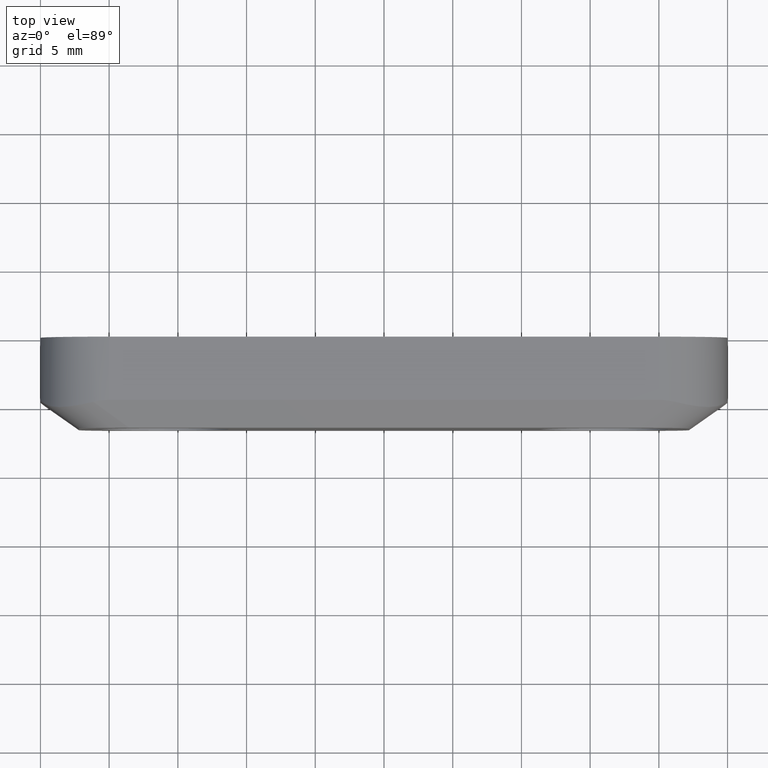
[diagram: clean part render]
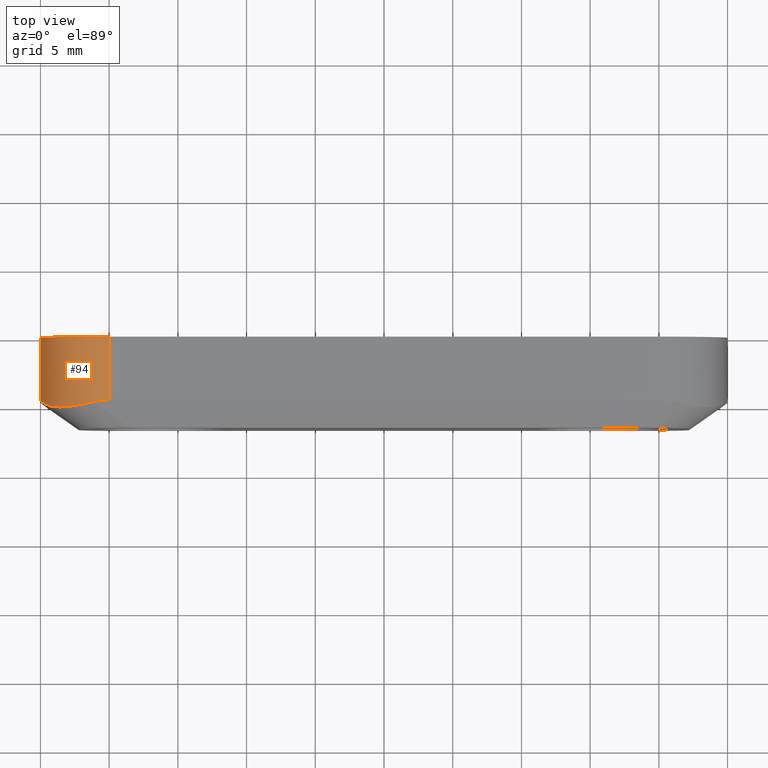
[diagram: same view with one face highlighted and labeled with its STEP entity id]
A machine part, top view. The second image highlights one B-rep face of the part: STEP entity #94.
In plain terms, the highlighted cylindrical surface (partial cylindrical patch) has radius 5 mm, axis along (-0, -1, -0).
Its self-contained STEP definition (entity closure, byte-faithful):
#94=ADVANCED_FACE('',(#300),#299,.T.);
#299=CYLINDRICAL_SURFACE('',#493,5.00000000000E+00);
#300=FACE_OUTER_BOUND('',#494,.T.);
#490=CARTESIAN_POINT('',(-2.00000000000E+01,-1.00000000000E+03,3.50000000000E+00));
#491=DIRECTION('',(-0.00000000000E+00,-1.00000000000E+00,-0.00000000000E+00));
#492=DIRECTION('',(-0.00000000000E+00,-0.00000000000E+00,-1.00000000000E+00));
#493=AXIS2_PLACEMENT_3D('',#490,#491,#492);
#494=EDGE_LOOP('',(#641,#642,#643,#644,#645,#646));
#641=ORIENTED_EDGE('',*,*,#734,.F.);
#642=ORIENTED_EDGE('',*,*,#715,.F.);
#643=ORIENTED_EDGE('',*,*,#718,.F.);
#644=ORIENTED_EDGE('',*,*,#742,.F.);
#645=ORIENTED_EDGE('',*,*,#736,.F.);
#646=ORIENTED_EDGE('',*,*,#696,.T.);
#696=EDGE_CURVE('',#870,#863,#871,.T.);
#715=EDGE_CURVE('',#992,#985,#999,.T.);
#718=EDGE_CURVE('',#1011,#992,#1018,.T.);
#734=EDGE_CURVE('',#985,#863,#1124,.T.);
#736=EDGE_CURVE('',#870,#1136,#1137,.T.);
#742=EDGE_CURVE('',#1136,#1011,#1177,.T.);
#863=VERTEX_POINT('',#1319);
#870=VERTEX_POINT('',#1323);
#871=(BOUNDED_CURVE() B_SPLINE_CURVE(3,(#1324,#1325,#1326,#1327,#1328,#1329,#1330,#1331,#1332,#1333,#1334,#1335,#1336,#1337),.UNSPECIFIED.,.F.,.F.) B_SPLINE_CURVE_WITH_KNOTS((4,2,2,2,2,2,4),(-4.90824634322E-03,-3.68118475742E-03,-3.06765396452E-03,-2.45412317161E-03,-1.84059237871E-03,-1.22706158581E-03,-0.00000000000E+00),.UNSPECIFIED.) CURVE() GEOMETRIC_REPRESENTATION_ITEM() RATIONAL_B_SPLINE_CURVE((1.00000000000E+00,1.00000000000E+00,1.00000000000E+00,1.00000000000E+00,1.00000000000E+00,1.00000000000E+00,1.00000000000E+00,1.00000000000E+00,1.00000000000E+00,1.00000000000E+00,1.00000000000E+00,1.00000000000E+00,1.00000000000E+00,1.00000000000E+00)) REPRESENTATION_ITEM('') );
#985=VERTEX_POINT('',#1414);
#992=VERTEX_POINT('',#1418);
#999=LINE('',#1422,#1423);
#1011=VERTEX_POINT('',#1428);
#1018=CIRCLE('',#1435,5.00000000000E+00);
#1124=(BOUNDED_CURVE() B_SPLINE_CURVE(2,(#1499,#1500,#1501),.UNSPECIFIED.,.F.,.F.) B_SPLINE_CURVE_WITH_KNOTS((3,3),(-6.28318530718E+00,-6.04960202528E+00),.UNSPECIFIED.) CURVE() GEOMETRIC_REPRESENTATION_ITEM() RATIONAL_B_SPLINE_CURVE((1.00000000000E+00,9.93187605171E-01,1.00000000000E+00)) REPRESENTATION_ITEM('') );
#1136=VERTEX_POINT('',#1505);
#1137=(BOUNDED_CURVE() B_SPLINE_CURVE(2,(#1506,#1507,#1508),.UNSPECIFIED.,.F.,.F.) B_SPLINE_CURVE_WITH_KNOTS((3,3),(-3.61227308264E-01,-5.61234065721E-17),.UNSPECIFIED.) CURVE() GEOMETRIC_REPRESENTATION_ITEM() RATIONAL_B_SPLINE_CURVE((1.00000000000E+00,9.83733645314E-01,1.00000000000E+00)) REPRESENTATION_ITEM('') );
#1177=LINE('',#1532,#1533);
#1319=CARTESIAN_POINT('',(-2.11573248682E+01,-4.73578380934E+00,8.36421619066E+00));
#1323=CARTESIAN_POINT('',(-2.46773188492E+01,-4.83048653627E+00,5.26711300790E+00));
#1324=CARTESIAN_POINT('',(-2.46773188492E+01,-4.83048653627E+00,5.26711300790E+00));
#1325=CARTESIAN_POINT('',(-2.45351442278E+01,-4.93203983728E+00,5.64343078364E+00));
#1326=CARTESIAN_POINT('',(-2.43467551378E+01,-5.00360393431E+00,6.00432384448E+00));
#1327=CARTESIAN_POINT('',(-2.39997594650E+01,-5.06739078605E+00,6.50722525909E+00));
#1328=CARTESIAN_POINT('',(-2.38720524415E+01,-5.08153356373E+00,6.67014865487E+00));
#1329=CARTESIAN_POINT('',(-2.35974899388E+01,-5.09522816680E+00,6.97860586221E+00));
#1330=CARTESIAN_POINT('',(-2.34520539393E+01,-5.09482975938E+00,7.12283673382E+00));
#1331=CARTESIAN_POINT('',(-2.31454236184E+01,-5.08093658207E+00,7.39203451432E+00));
#1332=CARTESIAN_POINT('',(-2.29842279747E+01,-5.06743344982E+00,7.51699935949E+00));
#1333=CARTESIAN_POINT('',(-2.26458862919E+01,-5.02816918211E+00,7.74749175272E+00));
#1334=CARTESIAN_POINT('',(-2.24680511663E+01,-5.00221437089E+00,7.85315268349E+00));
#1335=CARTESIAN_POINT('',(-2.19264859450E+01,-4.91010391662E+00,8.13179352795E+00));
#1336=CARTESIAN_POINT('',(-2.15500378682E+01,-4.82922055293E+00,8.27077944707E+00));
#1337=CARTESIAN_POINT('',(-2.11573248682E+01,-4.73578380934E+00,8.36421619066E+00));
#1414=CARTESIAN_POINT('',(-2.00000000000E+01,-4.60000000000E+00,8.50000000000E+00));
#1418=CARTESIAN_POINT('',(-2.00000000000E+01,0.00000000000E+00,8.50000000000E+00));
#1422=CARTESIAN_POINT('',(-2.00000000000E+01,0.00000000000E+00,8.50000000000E+00));
#1423=VECTOR('',#1424,4.60000000000E+00);
#1424=DIRECTION('',(0.00000000000E+00,-1.00000000000E+00,0.00000000000E+00));
#1428=CARTESIAN_POINT('',(-2.50000000000E+01,0.00000000000E+00,3.50000000000E+00));
#1432=CARTESIAN_POINT('',(-2.00000000000E+01,0.00000000000E+00,3.50000000000E+00));
#1433=DIRECTION('',(0.00000000000E+00,1.00000000000E+00,-0.00000000000E+00));
#1434=DIRECTION('',(-0.00000000000E+00,-0.00000000000E+00,-1.00000000000E+00));
#1435=AXIS2_PLACEMENT_3D('',#1432,#1433,#1434);
#1499=CARTESIAN_POINT('',(-2.00000000000E+01,-4.60000000000E+00,8.50000000000E+00));
#1500=CARTESIAN_POINT('',(-2.05866278911E+01,-4.60000000000E+00,8.50000000000E+00));
#1501=CARTESIAN_POINT('',(-2.11573248682E+01,-4.73578380934E+00,8.36421619066E+00));
#1505=CARTESIAN_POINT('',(-2.50000000000E+01,-4.60000000000E+00,3.50000000000E+00));
#1506=CARTESIAN_POINT('',(-2.46773188492E+01,-4.83048653627E+00,5.26711300790E+00));
#1507=CARTESIAN_POINT('',(-2.50000000000E+01,-4.60000000000E+00,4.41301786964E+00));
#1508=CARTESIAN_POINT('',(-2.50000000000E+01,-4.60000000000E+00,3.50000000000E+00));
#1532=CARTESIAN_POINT('',(-2.50000000000E+01,-4.60000000000E+00,3.50000000000E+00));
#1533=VECTOR('',#1534,4.60000000000E+00);
#1534=DIRECTION('',(0.00000000000E+00,1.00000000000E+00,0.00000000000E+00));